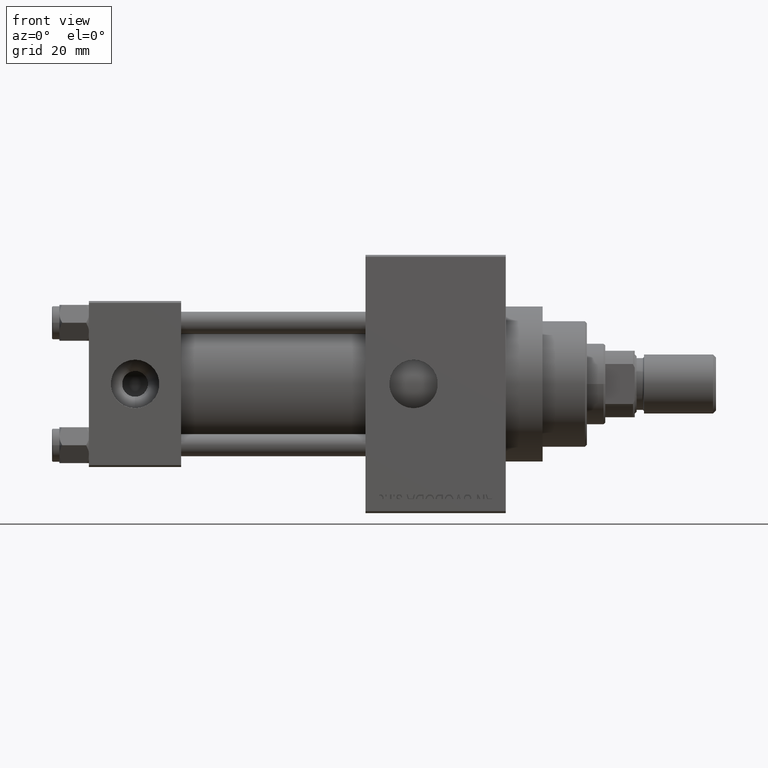
[diagram: clean part render]
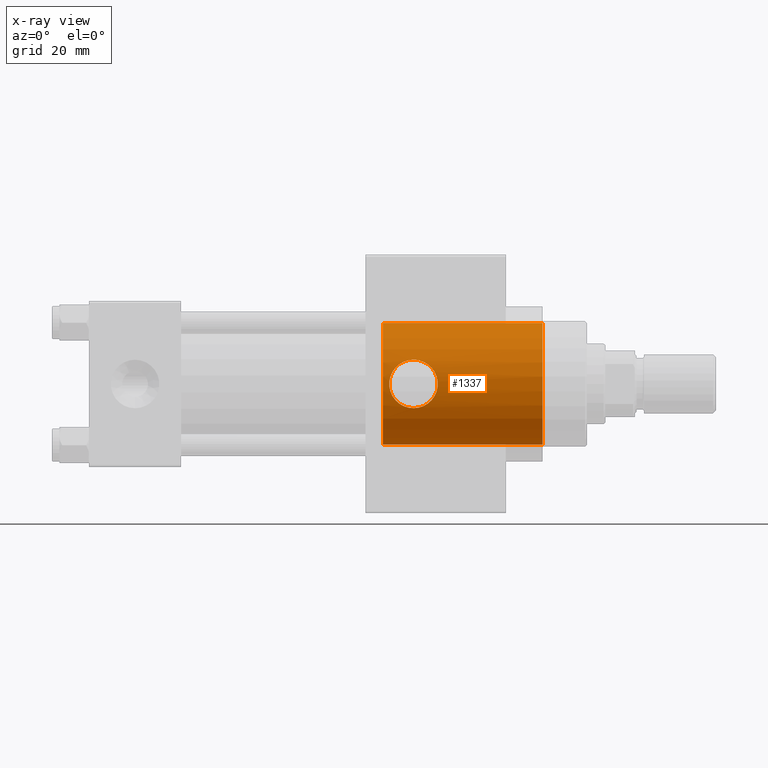
[diagram: x-ray — body ghosted, one internal face saturated and labeled with its STEP entity id]
A machine part, front view, then the same camera in x-ray: the body is ghosted and one INTERNAL B-rep face — a face not visible from any outside direction — is saturated and labeled: STEP entity #1337.
In plain terms, the highlighted cylindrical surface (partial cylindrical patch) has radius 16.5 mm, axis along (1, 0, 0).
Its self-contained STEP definition (entity closure, byte-faithful):
#41 = CARTESIAN_POINT ( 'NONE',  ( 79.74000000000000909, 0.000000000000000000, -16.50000000000000000 ) ) ;
#430 = VERTEX_POINT ( 'NONE', #23972 ) ;
#1337 = ADVANCED_FACE ( 'NONE', ( #45309, #12295 ), #23612, .F. ) ;
#1686 = DIRECTION ( 'NONE',  ( 1.000000000000000000, -0.000000000000000000, -0.000000000000000000 ) ) ;
#1779 = VERTEX_POINT ( 'NONE', #27125 ) ;
#1815 = CARTESIAN_POINT ( 'NONE',  ( 94.23960549615182458, -16.36649304724220855, 2.133746236587445555 ) ) ;
#2051 = CARTESIAN_POINT ( 'NONE',  ( 89.72421856822468555, -15.22315359912303379, 6.365087069679051801 ) ) ;
#2139 = ORIENTED_EDGE ( 'NONE', *, *, #30835, .T. ) ;
#2694 = CARTESIAN_POINT ( 'NONE',  ( 81.46441795529150909, -16.48214899759540586, 0.8773583784808497432 ) ) ;
#3970 = B_SPLINE_CURVE_WITH_KNOTS ( 'NONE', 3,
 ( #8533, #37940, #34321, #45861, #45390, #45162, #19401, #23931, #30710, #38406, #9003, #16709, #19632, #16002, #12625, #12143, #27324, #41780, #5397, #23466, #34081, #38183, #38644, #31412, #5171, #20328, #35027, #19866, #1815, #27795, #16480, #34558, #12856, #42238, #42009, #20099, #42482, #34788, #30470, #9227, #2051, #26852, #46095, #9474, #41546, #39598 ),
 .UNSPECIFIED., .F., .F.,
 ( 4, 2, 2, 2, 2, 2, 2, 2, 2, 2, 2, 2, 2, 2, 2, 2, 2, 2, 2, 2, 2, 2, 4 ),
 ( 1.422579022190208801E-17, 0.001299347807372217651, 0.001949021711058298830, 0.002598695614744379791, 0.003898043422116505285, 0.004547717325802566948, 0.005197391229488629479, 0.006496739036860752804, 0.007796086844232876130, 0.008445760747918929986, 0.009095434651604981241, 0.01039478245897708895, 0.01104445636266314194, 0.01169413026634919493, 0.01299347807372129918, 0.01429282588109340689, 0.01559217368846551287, 0.01689152149583762058, 0.01754119539952369092, 0.01819086930320976125, 0.01949021711058194356, 0.02013989101426805553, 0.02078956491795416750 ),
 .UNSPECIFIED. ) ;
#4141 = CARTESIAN_POINT ( 'NONE',  ( 79.74000000000000909, 2.020667218593133100E-15, 16.50000000000000000 ) ) ;
#5053 = ORIENTED_EDGE ( 'NONE', *, *, #17281, .T. ) ;
#5171 = CARTESIAN_POINT ( 'NONE',  ( 94.56935639638311386, -16.49574635277159373, 0.4334761427161704650 ) ) ;
#5397 = CARTESIAN_POINT ( 'NONE',  ( 94.22776227225716639, -16.36261533078069519, -2.135046045547241089 ) ) ;
#6280 = CARTESIAN_POINT ( 'NONE',  ( 82.41845520353781751, -16.12745476206849204, 3.491136278857375874 ) ) ;
#6753 = CARTESIAN_POINT ( 'NONE',  ( 84.69402960436481465, -15.48704689900104903, 5.693260508788501539 ) ) ;
#6976 = CARTESIAN_POINT ( 'NONE',  ( 81.46204717397817774, -16.48308870554039274, -0.8617218462485644048 ) ) ;
#6989 = CARTESIAN_POINT ( 'NONE',  ( 88.00000000000000000, -15.13121277360145811, -6.580000000000001847 ) ) ;
#7219 = CARTESIAN_POINT ( 'NONE',  ( 85.26908280149781660, -15.37442948406653009, 5.990397416240459627 ) ) ;
#8533 = CARTESIAN_POINT ( 'NONE',  ( 88.00000000000000000, -15.13121277360145811, -6.580000000000001847 ) ) ;
#9003 = CARTESIAN_POINT ( 'NONE',  ( 92.01559536413203944, -15.65417886246121881, -5.216995378072915912 ) ) ;
#9227 = CARTESIAN_POINT ( 'NONE',  ( 90.13516992720509791, -15.27614891417649545, 6.238637803414824212 ) ) ;
#9474 = CARTESIAN_POINT ( 'NONE',  ( 88.43271856412940224, -15.13585987939392297, 6.569344683897107018 ) ) ;
#9573 = DIRECTION ( 'NONE',  ( 1.000000000000000000, 0.000000000000000000, 0.000000000000000000 ) ) ;
#9810 = DIRECTION ( 'NONE',  ( 0.000000000000000000, 0.000000000000000000, -1.000000000000000000 ) ) ;
#9880 = CARTESIAN_POINT ( 'NONE',  ( 85.07286332274100005, -15.41062330090502108, 5.896992992228494934 ) ) ;
#10507 = CIRCLE ( 'NONE', #37462, 16.50000000000000000 ) ;
#10598 = CARTESIAN_POINT ( 'NONE',  ( 81.63343885719075388, -16.41586083349134384, -1.718805082160329345 ) ) ;
#10639 = CIRCLE ( 'NONE', #43733, 16.50000000000000000 ) ;
#10827 = CARTESIAN_POINT ( 'NONE',  ( 82.30801632971861181, -16.16611267912461614, 3.308181502302205867 ) ) ;
#12143 = CARTESIAN_POINT ( 'NONE',  ( 93.70492757302885423, -16.16938055003218011, -3.306933544473967590 ) ) ;
#12295 = FACE_OUTER_BOUND ( 'NONE', #28979, .T. ) ;
#12489 = VECTOR ( 'NONE', #23334, 1000.000000000000000 ) ;
#12625 = CARTESIAN_POINT ( 'NONE',  ( 93.22503174676323567, -16.00636203242128985, -4.022567752864854462 ) ) ;
#12685 = CARTESIAN_POINT ( 'NONE',  ( 88.00000000000000000, -15.13121277360145811, -6.580000000000001847 ) ) ;
#12856 = CARTESIAN_POINT ( 'NONE',  ( 92.94970874145626283, -15.91760481765424906, 4.356403647550572522 ) ) ;
#13108 = AXIS2_PLACEMENT_3D ( 'NONE', #16387, #20470, #34473 ) ;
#13480 = EDGE_CURVE ( 'NONE', #43787, #25715, #10507, .T. ) ;
#13491 = CARTESIAN_POINT ( 'NONE',  ( 84.15703799810398777, -15.61065458758650415, -5.345392095018783429 ) ) ;
#13727 = CARTESIAN_POINT ( 'NONE',  ( 82.10068808013929242, -16.24027142867651463, -2.922495950178621182 ) ) ;
#14206 = CARTESIAN_POINT ( 'NONE',  ( 83.65061552841521575, -15.74124088927799470, 4.956139103679619851 ) ) ;
#14454 = CARTESIAN_POINT ( 'NONE',  ( 81.63556865913172089, -16.41503546168713257, 1.725573555308426821 ) ) ;
#16002 = CARTESIAN_POINT ( 'NONE',  ( 92.95318072607398108, -15.91870913537849574, -4.352308027976941496 ) ) ;
#16387 = CARTESIAN_POINT ( 'NONE',  ( 79.74000000000000909, 0.000000000000000000, 0.000000000000000000 ) ) ;
#16442 = DIRECTION ( 'NONE',  ( 0.000000000000000000, 0.000000000000000000, -1.000000000000000000 ) ) ;
#16480 = CARTESIAN_POINT ( 'NONE',  ( 93.70093240426635361, -16.16799854402053072, 3.313288550714166725 ) ) ;
#16709 = CARTESIAN_POINT ( 'NONE',  ( 92.34556999460306770, -15.74205476764337774, -4.945509915598002237 ) ) ;
#16992 = VECTOR ( 'NONE', #1686, 1000.000000000000000 ) ;
#17281 = EDGE_CURVE ( 'NONE', #31738, #1779, #10639, .T. ) ;
#17372 = CARTESIAN_POINT ( 'NONE',  ( 81.41981028753608030, -16.50007565502492923, -0.4306565832376096359 ) ) ;
#17948 = ORIENTED_EDGE ( 'NONE', *, *, #33546, .T. ) ;
#18085 = CARTESIAN_POINT ( 'NONE',  ( 82.41639351203434671, -16.12816461199180296, -3.487910063402579031 ) ) ;
#18327 = CARTESIAN_POINT ( 'NONE',  ( 85.86137897804105990, -15.27651310399956053, -6.237825412003230596 ) ) ;
#18813 = CARTESIAN_POINT ( 'NONE',  ( 86.27568253945602805, -15.22330041739757611, -6.364725720179155388 ) ) ;
#19054 = CARTESIAN_POINT ( 'NONE',  ( 85.06182403035941775, -15.40879718763535777, -5.903497922217324501 ) ) ;
#19401 = CARTESIAN_POINT ( 'NONE',  ( 90.33684364041408799, -15.30934634399819494, -6.154824634276154782 ) ) ;
#19632 = CARTESIAN_POINT ( 'NONE',  ( 92.50297754342184930, -15.78638122130811361, -4.802565914417454174 ) ) ;
#19831 = CARTESIAN_POINT ( 'NONE',  ( 79.74000000000000909, 0.000000000000000000, 0.000000000000000000 ) ) ;
#19866 = CARTESIAN_POINT ( 'NONE',  ( 94.36581055691588915, -16.41557174924396634, 1.720484255628331516 ) ) ;
#20099 = CARTESIAN_POINT ( 'NONE',  ( 91.48596573170637214, -15.52661439514565345, 5.584815751443770182 ) ) ;
#20328 = CARTESIAN_POINT ( 'NONE',  ( 94.52600533127420590, -16.47852996647751311, 0.8692522333500433129 ) ) ;
#20470 = DIRECTION ( 'NONE',  ( 1.000000000000000000, -0.000000000000000000, -0.000000000000000000 ) ) ;
#21204 = CARTESIAN_POINT ( 'NONE',  ( 87.13388940439516261, -15.15443439520091218, 6.526382333001785163 ) ) ;
#21433 = CARTESIAN_POINT ( 'NONE',  ( 88.00000000000001421, -15.13121277360145811, 6.580000000000003624 ) ) ;
#21902 = CARTESIAN_POINT ( 'NONE',  ( 83.65578448845562320, -15.74167879188346397, -4.946709378541642721 ) ) ;
#22385 = CARTESIAN_POINT ( 'NONE',  ( 87.12258445352360070, -15.15075783367944418, -6.535529523814301633 ) ) ;
#23332 = LINE ( 'NONE', #26495, #16992 ) ;
#23334 = DIRECTION ( 'NONE',  ( 1.000000000000000000, -0.000000000000000000, -0.000000000000000000 ) ) ;
#23466 = CARTESIAN_POINT ( 'NONE',  ( 94.35484608190849087, -16.41140537151213152, -1.720283642777878708 ) ) ;
#23612 = CYLINDRICAL_SURFACE ( 'NONE', #13108, 16.50000000000000000 ) ;
#23751 = CARTESIAN_POINT ( 'NONE',  ( 87.56063525018694804, -15.13121277360146522, -6.580000000000002736 ) ) ;
#23931 = CARTESIAN_POINT ( 'NONE',  ( 90.93254987292539226, -15.40779146666331201, -5.906079000195547657 ) ) ;
#23972 = CARTESIAN_POINT ( 'NONE',  ( 88.00000000000001421, -15.13121277360145811, 6.580000000000003624 ) ) ;
#24584 = CARTESIAN_POINT ( 'NONE',  ( 84.51107725903878531, -15.52728767156315648, 5.582932414048518588 ) ) ;
#25064 = CARTESIAN_POINT ( 'NONE',  ( 87.78373209330324300, -15.13121277360146522, 6.580000000000002736 ) ) ;
#25541 = ORIENTED_EDGE ( 'NONE', *, *, #29803, .F. ) ;
#25715 = VERTEX_POINT ( 'NONE', #41 ) ;
#26052 = EDGE_CURVE ( 'NONE', #36105, #430, #3970, .T. ) ;
#26495 = CARTESIAN_POINT ( 'NONE',  ( 79.74000000000000909, 0.000000000000000000, -16.50000000000000000 ) ) ;
#26852 = CARTESIAN_POINT ( 'NONE',  ( 89.08173505756261079, -15.16832949578266820, 6.494148522642639421 ) ) ;
#27125 = CARTESIAN_POINT ( 'NONE',  ( 123.0000000000000142, 0.000000000000000000, -16.50000000000000000 ) ) ;
#27324 = CARTESIAN_POINT ( 'NONE',  ( 93.90698018969814598, -16.24261528062370985, -2.930445673899457315 ) ) ;
#27795 = CARTESIAN_POINT ( 'NONE',  ( 93.90448602750961982, -16.24168627842798784, 2.936425463161414395 ) ) ;
#28202 = CARTESIAN_POINT ( 'NONE',  ( 84.68649942342875647, -15.48596799979301331, -5.700684899122759219 ) ) ;
#28911 = CARTESIAN_POINT ( 'NONE',  ( 81.76151881251234954, -16.36607928442571946, 2.136189589747829576 ) ) ;
#28979 = EDGE_LOOP ( 'NONE', ( #43365, #17948, #5053, #25541 ) ) ;
#29151 = CARTESIAN_POINT ( 'NONE',  ( 83.04379441012368090, -15.91962631954779717, -4.349073433710465508 ) ) ;
#29803 = EDGE_CURVE ( 'NONE', #25715, #1779, #23332, .T. ) ;
#30470 = CARTESIAN_POINT ( 'NONE',  ( 90.72775599567029303, -15.37388358644063757, 5.991788989370719243 ) ) ;
#30710 = CARTESIAN_POINT ( 'NONE',  ( 91.30852706938543406, -15.48484319519207197, -5.703819245747570932 ) ) ;
#30835 = EDGE_CURVE ( 'NONE', #430, #36105, #34681, .T. ) ;
#31412 = CARTESIAN_POINT ( 'NONE',  ( 94.58011097970459957, -16.50004425735603775, 0.2139202420057961795 ) ) ;
#31738 = VERTEX_POINT ( 'NONE', #38214 ) ;
#31836 = CARTESIAN_POINT ( 'NONE',  ( 82.30460724883101875, -16.16731373912637793, -3.302327227358419215 ) ) ;
#32078 = CARTESIAN_POINT ( 'NONE',  ( 81.76078627727757464, -16.36636496367314919, -2.133785395076398750 ) ) ;
#32548 = CARTESIAN_POINT ( 'NONE',  ( 83.98073047810798641, -15.65215798738097952, 5.227153856479613836 ) ) ;
#33546 = EDGE_CURVE ( 'NONE', #43787, #31738, #34434, .T. ) ;
#34081 = CARTESIAN_POINT ( 'NONE',  ( 94.40873837948967662, -16.43240648733736364, -1.507201823210712277 ) ) ;
#34321 = CARTESIAN_POINT ( 'NONE',  ( 88.87114115453491081, -15.15039334692471407, -6.536368168917459975 ) ) ;
#34434 = LINE ( 'NONE', #41421, #12489 ) ;
#34473 = DIRECTION ( 'NONE',  ( 0.000000000000000000, 0.000000000000000000, -1.000000000000000000 ) ) ;
#34558 = CARTESIAN_POINT ( 'NONE',  ( 93.22520961987133603, -16.00644752007863758, 4.021902003618680332 ) ) ;
#34681 = B_SPLINE_CURVE_WITH_KNOTS ( 'NONE', 3,
 ( #21433, #25064, #35671, #21204, #35903, #39779, #39295, #7219, #9880, #6753, #24584, #32548, #14206, #46750, #46983, #6280, #10827, #36131, #47217, #28911, #14454, #2694, #43613, #17372, #6976, #10598, #32078, #40002, #13727, #31836, #18085, #47450, #29151, #40244, #21902, #46516, #13491, #28202, #19054, #18327, #18813, #22385, #23751, #12685 ),
 .UNSPECIFIED., .F., .F.,
 ( 4, 2, 2, 2, 2, 2, 2, 2, 2, 2, 2, 2, 2, 2, 2, 2, 2, 2, 2, 2, 2, 4 ),
 ( 0.02078956491795416750, 0.02143865439125712882, 0.02208774386456009015, 0.02338592281116605096, 0.02403501228446901228, 0.02468410175777197707, 0.02598228070437793788, 0.02728045965098389869, 0.02792954912428688777, 0.02857863859758988032, 0.02987681754419584806, 0.03117499649080181234, 0.03247317543740777662, 0.03377135438401374090, 0.03442044385731672651, 0.03506953333061970518, 0.03636771227722566946, 0.03701680175052865507, 0.03766589122383164068, 0.03896407017043763965, 0.04026224911704365250, 0.04156042806364965148 ),
 .UNSPECIFIED. ) ;
#34788 = CARTESIAN_POINT ( 'NONE',  ( 90.92128028319974931, -15.40951052421081258, 5.899896746572026451 ) ) ;
#35027 = CARTESIAN_POINT ( 'NONE',  ( 94.49366939833960544, -16.46571605509280189, 1.084186457750416110 ) ) ;
#35671 = CARTESIAN_POINT ( 'NONE',  ( 87.56725786911962928, -15.13585148006111325, 6.569364365636748637 ) ) ;
#35903 = CARTESIAN_POINT ( 'NONE',  ( 86.91603300868372628, -15.16850391705046697, 6.493739731009420701 ) ) ;
#36105 = VERTEX_POINT ( 'NONE', #6989 ) ;
#36131 = CARTESIAN_POINT ( 'NONE',  ( 82.10395594315326662, -16.23908422823408060, 2.929062552190938362 ) ) ;
#37462 = AXIS2_PLACEMENT_3D ( 'NONE', #19831, #45129, #16442 ) ;
#37940 = CARTESIAN_POINT ( 'NONE',  ( 88.43976034721468693, -15.13121277360146344, -6.580000000000003624 ) ) ;
#38183 = CARTESIAN_POINT ( 'NONE',  ( 94.53691434994769338, -16.48267789565536035, -0.8682687325833986502 ) ) ;
#38196 = ORIENTED_EDGE ( 'NONE', *, *, #26052, .T. ) ;
#38214 = CARTESIAN_POINT ( 'NONE',  ( 123.0000000000000142, 2.020667218593133100E-15, 16.50000000000000000 ) ) ;
#38366 = EDGE_LOOP ( 'NONE', ( #38196, #2139 ) ) ;
#38406 = CARTESIAN_POINT ( 'NONE',  ( 91.84223137478365118, -15.61045951566062229, -5.345983015487657752 ) ) ;
#38644 = CARTESIAN_POINT ( 'NONE',  ( 94.57977542571143204, -16.49991044250578653, -0.4380009678969576936 ) ) ;
#39295 = CARTESIAN_POINT ( 'NONE',  ( 85.86534310664579550, -15.27601560990892793, 6.238999899499642510 ) ) ;
#39598 = CARTESIAN_POINT ( 'NONE',  ( 88.00000000000001421, -15.13121277360145811, 6.580000000000003624 ) ) ;
#39779 = CARTESIAN_POINT ( 'NONE',  ( 86.27678268093471559, -15.22310035774497372, 6.365208763323283669 ) ) ;
#40002 = CARTESIAN_POINT ( 'NONE',  ( 82.00849224718514563, -16.27408657079178056, -2.728432122203504839 ) ) ;
#40244 = CARTESIAN_POINT ( 'NONE',  ( 83.49612026374146012, -15.78663247038170070, -4.801767457567220454 ) ) ;
#41421 = CARTESIAN_POINT ( 'NONE',  ( 79.74000000000000909, 2.020667218593133100E-15, 16.50000000000000000 ) ) ;
#41546 = CARTESIAN_POINT ( 'NONE',  ( 88.21646263106185870, -15.13121277360145989, 6.580000000000001847 ) ) ;
#41780 = CARTESIAN_POINT ( 'NONE',  ( 94.15455883687184269, -16.33481951307493674, -2.337453149428502908 ) ) ;
#42009 = CARTESIAN_POINT ( 'NONE',  ( 92.01883202999103162, -15.65200948303234441, 5.227646253864151049 ) ) ;
#42238 = CARTESIAN_POINT ( 'NONE',  ( 92.34667343079654245, -15.74052401985886718, 4.958255686392932127 ) ) ;
#42482 = CARTESIAN_POINT ( 'NONE',  ( 91.30033475952436106, -15.48584339413507394, 5.696529696955704658 ) ) ;
#43365 = ORIENTED_EDGE ( 'NONE', *, *, #13480, .F. ) ;
#43613 = CARTESIAN_POINT ( 'NONE',  ( 81.42019098083677875, -16.49992383916339023, 0.4364344349844271886 ) ) ;
#43733 = AXIS2_PLACEMENT_3D ( 'NONE', #43960, #9573, #9810 ) ;
#43787 = VERTEX_POINT ( 'NONE', #4141 ) ;
#43960 = CARTESIAN_POINT ( 'NONE',  ( 123.0000000000000142, 0.000000000000000000, 0.000000000000000000 ) ) ;
#45129 = DIRECTION ( 'NONE',  ( 1.000000000000000000, 0.000000000000000000, 0.000000000000000000 ) ) ;
#45162 = CARTESIAN_POINT ( 'NONE',  ( 90.13180106093750510, -15.27925665273814637, -6.228887546595350599 ) ) ;
#45309 = FACE_BOUND ( 'NONE', #38366, .T. ) ;
#45390 = CARTESIAN_POINT ( 'NONE',  ( 89.71621027005727456, -15.22683439812355033, -6.355960835349359073 ) ) ;
#45861 = CARTESIAN_POINT ( 'NONE',  ( 89.50642608142695167, -15.20455203064718575, -6.408878950244512929 ) ) ;
#46095 = CARTESIAN_POINT ( 'NONE',  ( 88.86481447022576674, -15.15436943593550900, 6.526532836328763132 ) ) ;
#46516 = CARTESIAN_POINT ( 'NONE',  ( 83.98618682780362121, -15.65371965244644770, -5.218375791872163383 ) ) ;
#46750 = CARTESIAN_POINT ( 'NONE',  ( 83.04388476941380759, -15.91956650262382666, 4.349411674909240411 ) ) ;
#46983 = CARTESIAN_POINT ( 'NONE',  ( 82.77427371722572502, -16.00662470145049454, 4.021104841631726323 ) ) ;
#47217 = CARTESIAN_POINT ( 'NONE',  ( 82.01032472994442912, -16.27341039072888407, 2.732504077175514912 ) ) ;
#47450 = CARTESIAN_POINT ( 'NONE',  ( 82.77396933380863686, -16.00670877726530250, -4.020959533168206868 ) ) ;